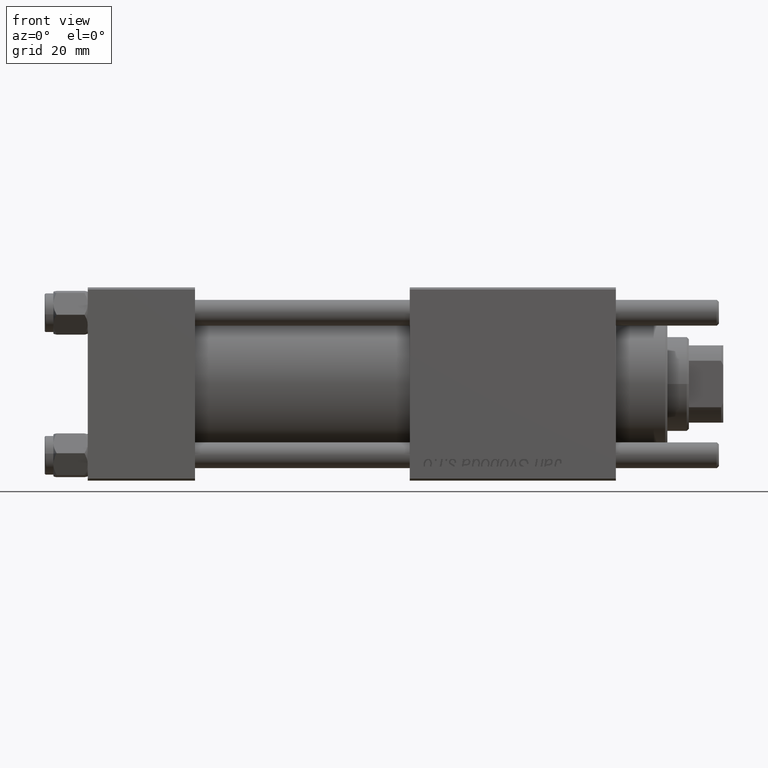
[diagram: clean part render]
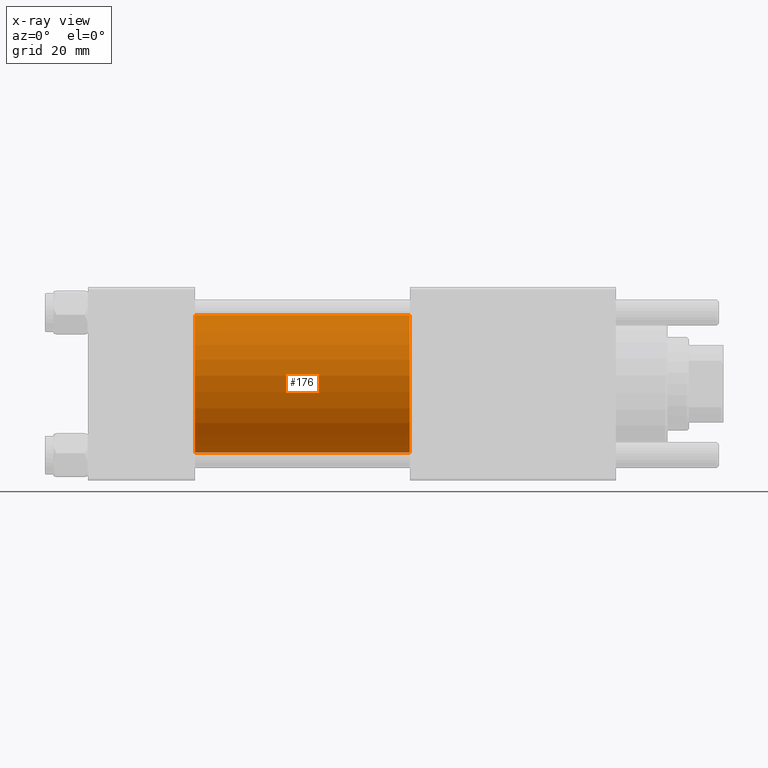
[diagram: x-ray — body ghosted, one internal face saturated and labeled with its STEP entity id]
A machine part, front view, then the same camera in x-ray: the body is ghosted and one INTERNAL B-rep face — a face not visible from any outside direction — is saturated and labeled: STEP entity #176.
In plain terms, the highlighted cylindrical surface (partial cylindrical patch) has radius 16 mm, axis along (-1, -0, -0).
Its self-contained STEP definition (entity closure, byte-faithful):
#176 = ADVANCED_FACE ( 'NONE', ( #52949 ), #13869, .F. ) ;
#727 = AXIS2_PLACEMENT_3D ( 'NONE', #15447, #24345, #19192 ) ;
#2002 = VERTEX_POINT ( 'NONE', #28872 ) ;
#3355 = AXIS2_PLACEMENT_3D ( 'NONE', #52110, #18169, #13574 ) ;
#3489 = CARTESIAN_POINT ( 'NONE',  ( 75.00000000000001421, -2.602085213965210642E-15, 16.00000000000000000 ) ) ;
#3695 = EDGE_CURVE ( 'NONE', #25550, #2002, #51221, .T. ) ;
#6715 = EDGE_LOOP ( 'NONE', ( #12062, #35126, #35110, #31248 ) ) ;
#8427 = VERTEX_POINT ( 'NONE', #23906 ) ;
#12062 = ORIENTED_EDGE ( 'NONE', *, *, #41226, .T. ) ;
#12680 = CIRCLE ( 'NONE', #44847, 16.00000000000000000 ) ;
#13421 = DIRECTION ( 'NONE',  ( -1.000000000000000000, -0.000000000000000000, -0.000000000000000000 ) ) ;
#13574 = DIRECTION ( 'NONE',  ( 0.000000000000000000, 0.000000000000000000, 1.000000000000000000 ) ) ;
#13869 = CYLINDRICAL_SURFACE ( 'NONE', #3355, 16.00000000000000000 ) ;
#15120 = CARTESIAN_POINT ( 'NONE',  ( 75.00000000000001421, -2.602085213965210642E-15, 16.00000000000000000 ) ) ;
#15447 = CARTESIAN_POINT ( 'NONE',  ( 25.00000000000000000, -2.602085213965210642E-15, 0.000000000000000000 ) ) ;
#17319 = VECTOR ( 'NONE', #32678, 1000.000000000000000 ) ;
#18169 = DIRECTION ( 'NONE',  ( -1.000000000000000000, -0.000000000000000000, -0.000000000000000000 ) ) ;
#19192 = DIRECTION ( 'NONE',  ( 0.000000000000000000, 0.000000000000000000, -1.000000000000000000 ) ) ;
#19949 = EDGE_CURVE ( 'NONE', #8427, #2002, #27209, .T. ) ;
#21666 = VERTEX_POINT ( 'NONE', #3489 ) ;
#23906 = CARTESIAN_POINT ( 'NONE',  ( 75.00000000000001421, -6.426503353294456087E-16, -16.00000000000000000 ) ) ;
#24193 = CARTESIAN_POINT ( 'NONE',  ( 75.00000000000001421, -2.602085213965210642E-15, 0.000000000000000000 ) ) ;
#24345 = DIRECTION ( 'NONE',  ( 1.000000000000000000, 0.000000000000000000, 0.000000000000000000 ) ) ;
#25550 = VERTEX_POINT ( 'NONE', #43161 ) ;
#27209 = LINE ( 'NONE', #31840, #29532 ) ;
#28872 = CARTESIAN_POINT ( 'NONE',  ( 25.00000000000000000, -6.426503353294456087E-16, -16.00000000000000000 ) ) ;
#29532 = VECTOR ( 'NONE', #13421, 1000.000000000000000 ) ;
#31248 = ORIENTED_EDGE ( 'NONE', *, *, #43164, .F. ) ;
#31840 = CARTESIAN_POINT ( 'NONE',  ( 75.00000000000001421, -6.426503353294456087E-16, -16.00000000000000000 ) ) ;
#32678 = DIRECTION ( 'NONE',  ( -1.000000000000000000, -0.000000000000000000, -0.000000000000000000 ) ) ;
#35110 = ORIENTED_EDGE ( 'NONE', *, *, #3695, .F. ) ;
#35126 = ORIENTED_EDGE ( 'NONE', *, *, #19949, .T. ) ;
#38515 = DIRECTION ( 'NONE',  ( 1.000000000000000000, 0.000000000000000000, 0.000000000000000000 ) ) ;
#41226 = EDGE_CURVE ( 'NONE', #21666, #8427, #12680, .T. ) ;
#43161 = CARTESIAN_POINT ( 'NONE',  ( 25.00000000000000000, -2.602085213965210642E-15, 16.00000000000000000 ) ) ;
#43164 = EDGE_CURVE ( 'NONE', #21666, #25550, #54498, .T. ) ;
#44847 = AXIS2_PLACEMENT_3D ( 'NONE', #24193, #38515, #54955 ) ;
#51221 = CIRCLE ( 'NONE', #727, 16.00000000000000000 ) ;
#52110 = CARTESIAN_POINT ( 'NONE',  ( 75.00000000000001421, -2.602085213965210642E-15, 0.000000000000000000 ) ) ;
#52949 = FACE_OUTER_BOUND ( 'NONE', #6715, .T. ) ;
#54498 = LINE ( 'NONE', #15120, #17319 ) ;
#54955 = DIRECTION ( 'NONE',  ( 0.000000000000000000, 0.000000000000000000, -1.000000000000000000 ) ) ;